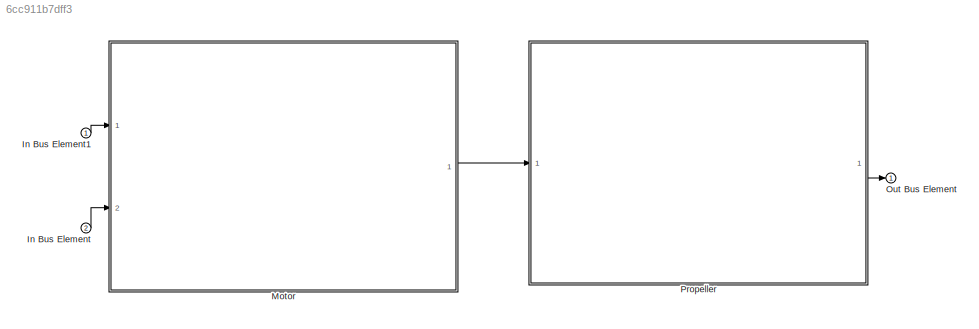
MODEL slx_6cc911b7dff3
KIND model
CONFIG AbsTol = auto
CONFIG EnableMultiTasking = off
CONFIG FixedStep = auto
CONFIG MaxStep = auto
CONFIG MinStep = auto
CONFIG RelTol = 1e-3
CONFIG SampleTimeConstraint = Unconstrained
CONFIG SolverName = VariableStepAuto
CONFIG StartTime = 0.0
CONFIG StopTime = 10.0
BLOCK [Inport] In Bus Element
  Port = 2
BLOCK [Inport] In Bus Element1
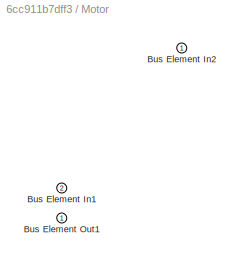
BLOCK [SubSystem] Motor
  PortSchema = {"entries":[{"content":{"headerSize":26,"margin":15,"minimumSpacing":25,"sides":[{"content":{"connectorIds":["In1","In2"]},"type":"ConnectorPlacement.EquallySpacedRectSide","uuid":"58971a95-43ec-4e42-90cb-f52848a43a78"},{"content":{"connectorIds":["Out1"],"side":"RIGHT"},"type":"ConnectorPlacement.EquallySpacedRectSide","uuid":"43bd139b-3ebd-443e-9d04-2758c166e5e5"},{"content":{"connectorIds":[],"...<+294ch>
  Ports = [2, 1]
  RequestExecContextInheritance = off
BLOCK [Inport] Motor/Bus Element In1
  Port = 2
BLOCK [Inport] Motor/Bus Element In2
BLOCK [Outport] Motor/Bus Element Out1
BLOCK [Outport] Out Bus Element
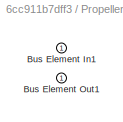
BLOCK [SubSystem] Propeller
  PortSchema = {"entries":[{"content":{"headerSize":26,"margin":15,"minimumSpacing":25,"sides":[{"content":{"connectorIds":["In1"]},"type":"ConnectorPlacement.EquallySpacedRectSide","uuid":"58971a95-43ec-4e42-90cb-f52848a43a78"},{"content":{"connectorIds":["Out1"],"side":"RIGHT"},"type":"ConnectorPlacement.EquallySpacedRectSide","uuid":"43bd139b-3ebd-443e-9d04-2758c166e5e5"},{"content":{"connectorIds":[],"side":...<+288ch>
  Ports = [1, 1]
  RequestExecContextInheritance = off
BLOCK [Inport] Propeller/Bus Element In1
BLOCK [Outport] Propeller/Bus Element Out1
LINE In Bus Element1:1 -> Motor:1
LINE In Bus Element:1 -> Motor:2
LINE Motor:1 -> Propeller:1
LINE Propeller:1 -> Out Bus Element:1
